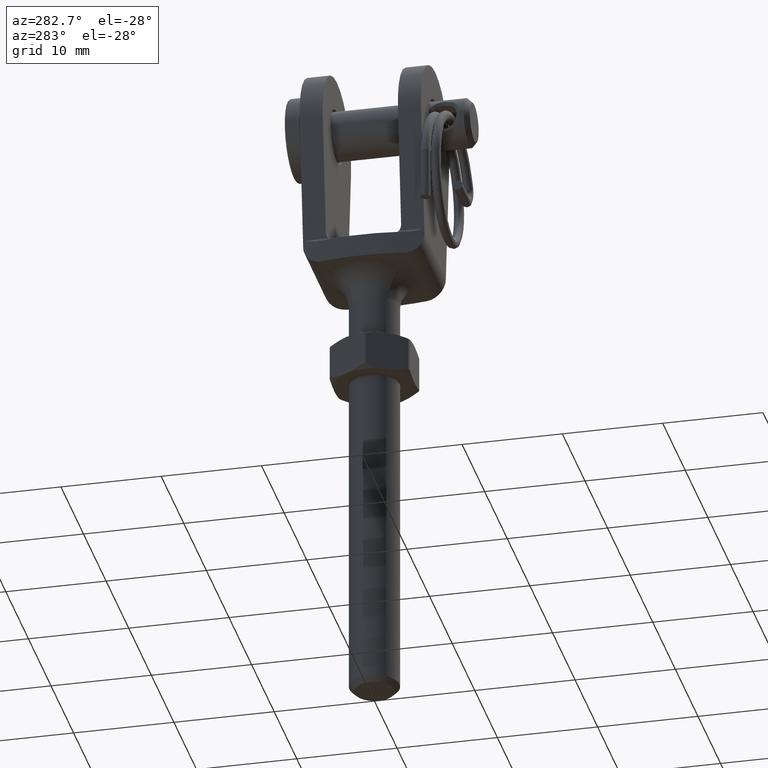
[diagram: clean part render]
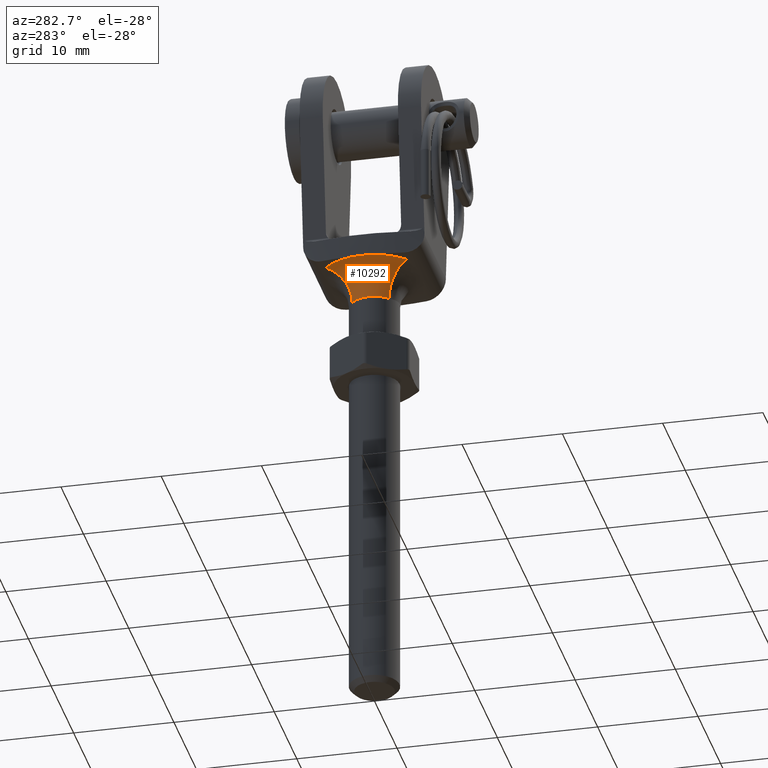
[diagram: same view with one face highlighted and labeled with its STEP entity id]
A machine part, auxiliary view. The second image highlights one B-rep face of the part: STEP entity #10292.
In plain terms, the highlighted toroidal blend (fillet) surface has major radius 5.5 mm and minor (blend) radius 3 mm.
Its self-contained STEP definition (entity closure, byte-faithful):
#106 = CIRCLE ( 'NONE', #4864, 3.000000000000000444 ) ;
#134 = DIRECTION ( 'NONE',  ( 1.224646799147353207E-16, -0.000000000000000000, 1.000000000000000000 ) ) ;
#248 = ORIENTED_EDGE ( 'NONE', *, *, #3442, .F. ) ;
#444 = ORIENTED_EDGE ( 'NONE', *, *, #18412, .F. ) ;
#881 = CIRCLE ( 'NONE', #17305, 5.500000000000000000 ) ;
#929 = DIRECTION ( 'NONE',  ( 1.224646799147353207E-16, -0.000000000000000000, 1.000000000000000000 ) ) ;
#1009 = AXIS2_PLACEMENT_3D ( 'NONE', #14243, #134, #3339 ) ;
#1499 = CARTESIAN_POINT ( 'NONE',  ( -3.721222917267924313, -4.049999999999999822, -5.299999999999998934 ) ) ;
#1619 = ORIENTED_EDGE ( 'NONE', *, *, #14232, .T. ) ;
#1857 = EDGE_CURVE ( 'NONE', #14950, #12093, #106, .T. ) ;
#1920 = AXIS2_PLACEMENT_3D ( 'NONE', #20485, #3165, #15705 ) ;
#3165 = DIRECTION ( 'NONE',  ( -1.224646799147353207E-16, 0.000000000000000000, -1.000000000000000000 ) ) ;
#3339 = DIRECTION ( 'NONE',  ( -1.000000000000000000, -1.776356839400250465E-15, 1.577021341797097314E-16 ) ) ;
#3442 = EDGE_CURVE ( 'NONE', #12093, #18477, #20412, .T. ) ;
#3689 = CARTESIAN_POINT ( 'NONE',  ( -3.721222917267923869, 4.049999999999999822, -2.299999999999999378 ) ) ;
#4242 = DIRECTION ( 'NONE',  ( -1.000000000000000000, 0.000000000000000000, 0.000000000000000000 ) ) ;
#4253 = CARTESIAN_POINT ( 'NONE',  ( -1.691464962394511051, -1.840909090909091050, -5.299999999999998934 ) ) ;
#4864 = AXIS2_PLACEMENT_3D ( 'NONE', #1499, #7645, #6124 ) ;
#5660 = CARTESIAN_POINT ( 'NONE',  ( -5.499999999999998224, 0.000000000000000000, -2.299999999999999378 ) ) ;
#5963 = FACE_OUTER_BOUND ( 'NONE', #16479, .T. ) ;
#6124 = DIRECTION ( 'NONE',  ( -0.6765859849578044205, -0.7363636363636362203, 0.000000000000000000 ) ) ;
#6232 = TOROIDAL_SURFACE ( 'NONE', #1920, 5.500000000000000000, 3.000000000000000000 ) ;
#6418 = DIRECTION ( 'NONE',  ( 0.7363636363636364424, 0.6765859849578043095, -0.000000000000000000 ) ) ;
#7298 = CARTESIAN_POINT ( 'NONE',  ( 3.673940397442058882E-16, 0.000000000000000000, -2.299999999999999822 ) ) ;
#7645 = DIRECTION ( 'NONE',  ( -0.7363636363636364424, 0.6765859849578044205, 1.064489405713040896E-16 ) ) ;
#7856 = CIRCLE ( 'NONE', #18236, 3.000000000000000000 ) ;
#9055 = CARTESIAN_POINT ( 'NONE',  ( -3.721222917267923869, 4.049999999999999822, -5.299999999999998934 ) ) ;
#10292 = ADVANCED_FACE ( 'NONE', ( #5963 ), #6232, .F. ) ;
#11199 = CARTESIAN_POINT ( 'NONE',  ( -3.721222917267923869, -4.049999999999999822, -2.299999999999999378 ) ) ;
#11814 = CIRCLE ( 'NONE', #1009, 5.500000000000000000 ) ;
#12093 = VERTEX_POINT ( 'NONE', #4253 ) ;
#12116 = DIRECTION ( 'NONE',  ( -1.224646799147353207E-16, 0.000000000000000000, -1.000000000000000000 ) ) ;
#12358 = VERTEX_POINT ( 'NONE', #5660 ) ;
#14232 = EDGE_CURVE ( 'NONE', #14564, #18477, #7856, .T. ) ;
#14243 = CARTESIAN_POINT ( 'NONE',  ( 3.673940397442058882E-16, 0.000000000000000000, -2.299999999999999822 ) ) ;
#14564 = VERTEX_POINT ( 'NONE', #3689 ) ;
#14950 = VERTEX_POINT ( 'NONE', #11199 ) ;
#15150 = ORIENTED_EDGE ( 'NONE', *, *, #16656, .F. ) ;
#15162 = DIRECTION ( 'NONE',  ( -1.000000000000000000, 0.000000000000000000, 1.577021341797097314E-16 ) ) ;
#15705 = DIRECTION ( 'NONE',  ( -1.000000000000000000, 0.000000000000000000, 1.224646799147353207E-16 ) ) ;
#16479 = EDGE_LOOP ( 'NONE', ( #1619, #248, #18751, #444, #15150 ) ) ;
#16656 = EDGE_CURVE ( 'NONE', #14564, #12358, #11814, .T. ) ;
#16800 = CARTESIAN_POINT ( 'NONE',  ( 0.000000000000000000, 0.000000000000000000, -5.299999999999998934 ) ) ;
#17117 = DIRECTION ( 'NONE',  ( -0.6765859849578044205, 0.7363636363636363313, 0.000000000000000000 ) ) ;
#17305 = AXIS2_PLACEMENT_3D ( 'NONE', #7298, #929, #15162 ) ;
#18112 = CARTESIAN_POINT ( 'NONE',  ( -1.691464962394511051, 1.840909090909091050, -5.299999999999998934 ) ) ;
#18236 = AXIS2_PLACEMENT_3D ( 'NONE', #9055, #6418, #17117 ) ;
#18412 = EDGE_CURVE ( 'NONE', #12358, #14950, #881, .T. ) ;
#18477 = VERTEX_POINT ( 'NONE', #18112 ) ;
#18751 = ORIENTED_EDGE ( 'NONE', *, *, #1857, .F. ) ;
#20399 = AXIS2_PLACEMENT_3D ( 'NONE', #16800, #12116, #4242 ) ;
#20412 = CIRCLE ( 'NONE', #20399, 2.500000000000000000 ) ;
#20485 = CARTESIAN_POINT ( 'NONE',  ( 0.000000000000000000, 0.000000000000000000, -5.299999999999998934 ) ) ;